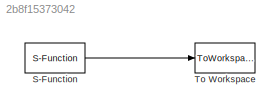
MODEL slx_2b8f15373042
KIND model
BLOCK [S-Function] S-Function
  EnableBusSupport = off
  FunctionName = SFunction_Lake
  Parameters = idR;Conn
  Ports = [1, 1]
BLOCK [ToWorkspace] To Workspace
  MaxDataPoints = inf
  Ports = [1]
  SampleTime = -1
  VariableName = allOut
LINE S-Function:1 -> To Workspace:1
